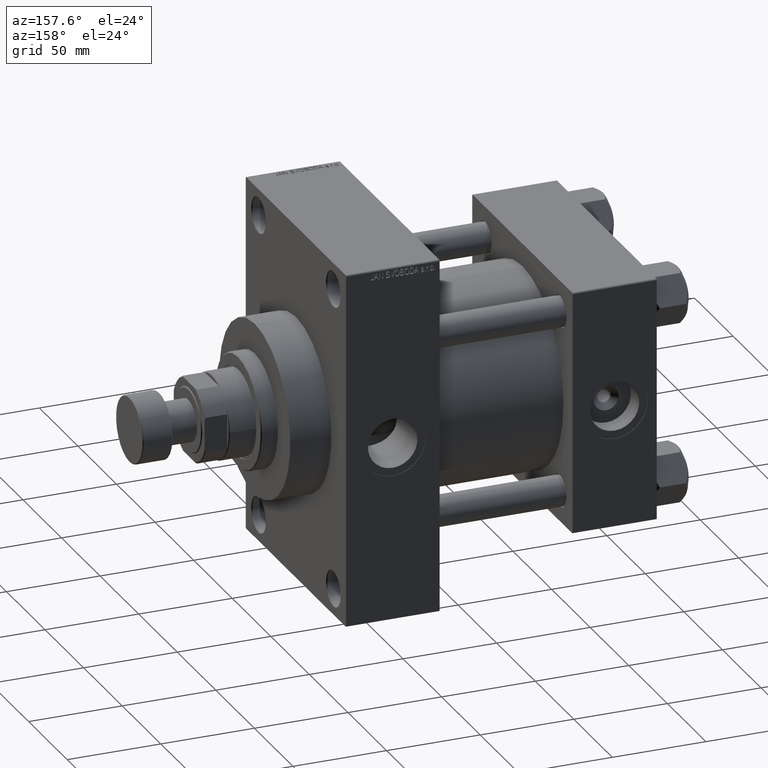
[diagram: clean part render]
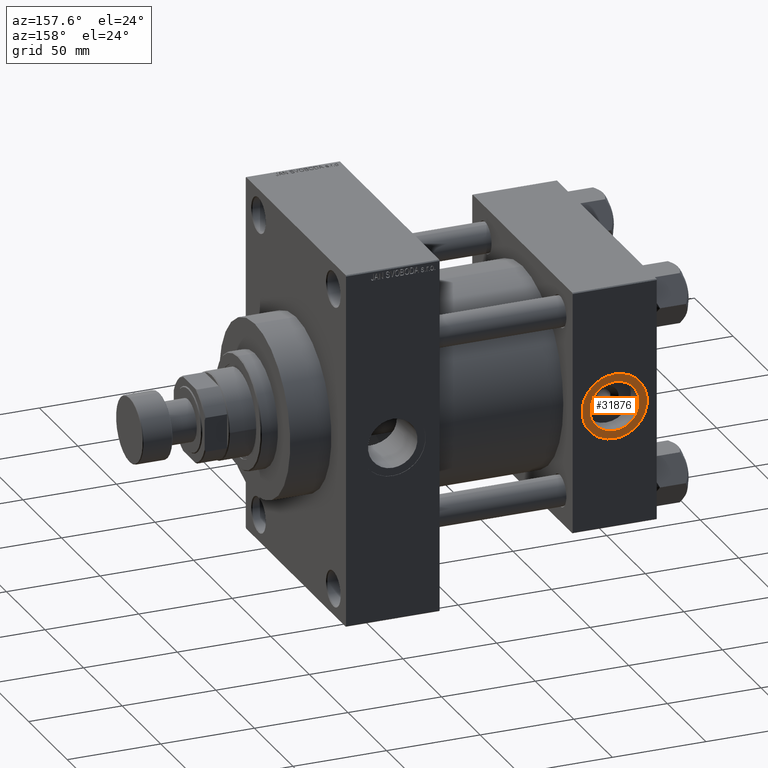
[diagram: same view with one face highlighted and labeled with its STEP entity id]
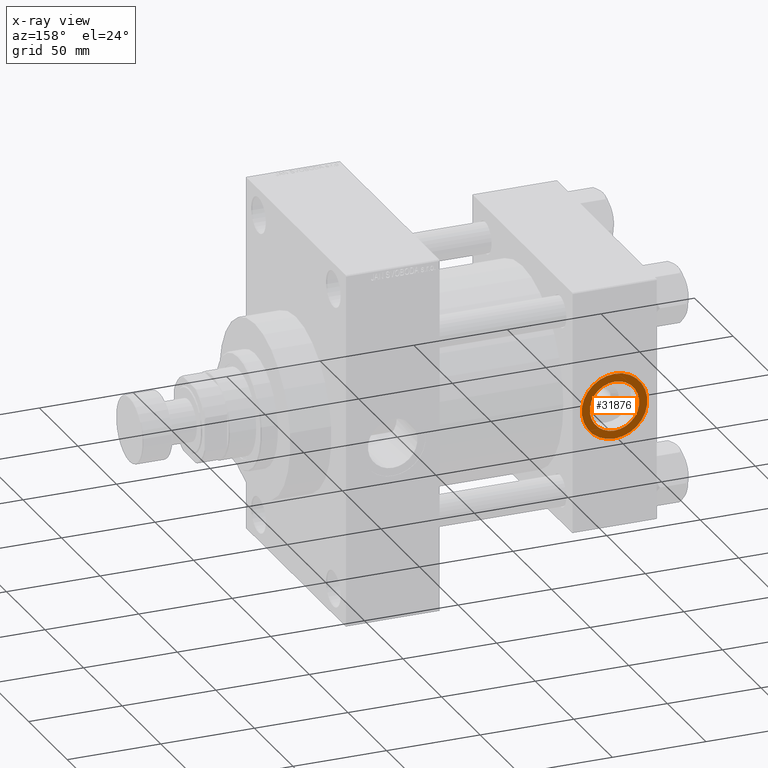
[diagram: x-ray of the same camera — body ghosted, the highlighted face saturated]
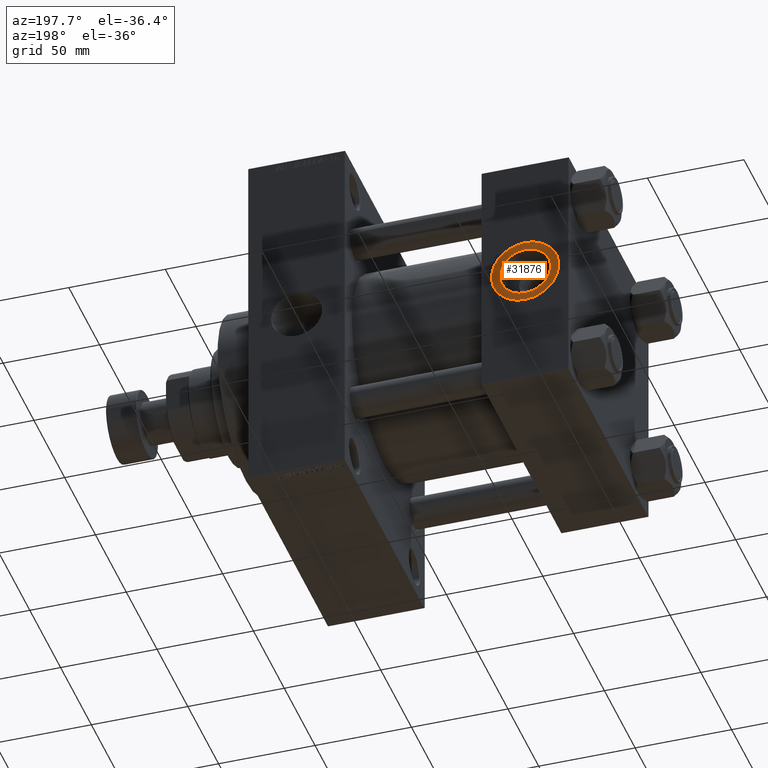
[diagram: same view with one face highlighted and labeled with its STEP entity id]
A machine part, auxiliary view. The second image highlights one B-rep face of the part: STEP entity #31876.
The next image is the same camera in x-ray: the body ghosted, the highlighted face saturated — about 0% of this face is hidden behind the body in this view.
A second angle (auxiliary view) of the same face is appended — the face is thin or edge-on in the first view.
In plain terms, the highlighted planar face has unit normal (0, 1, 0).
Its self-contained STEP definition (entity closure, byte-faithful):
#1027 = CIRCLE ( 'NONE', #35121, 13.22000000000000419 ) ;
#1163 = CARTESIAN_POINT ( 'NONE',  ( 22.50000000000000000, 64.79999999999999716, 0.000000000000000000 ) ) ;
#1800 = ORIENTED_EDGE ( 'NONE', *, *, #24486, .T. ) ;
#2202 = ORIENTED_EDGE ( 'NONE', *, *, #5266, .F. ) ;
#5266 = EDGE_CURVE ( 'NONE', #5877, #34135, #21087, .T. ) ;
#5311 = CARTESIAN_POINT ( 'NONE',  ( 22.50000000000000000, 64.79999999999999716, 0.000000000000000000 ) ) ;
#5877 = VERTEX_POINT ( 'NONE', #39176 ) ;
#8530 = AXIS2_PLACEMENT_3D ( 'NONE', #5311, #35564, #20815 ) ;
#8598 = PLANE ( 'NONE',  #8530 ) ;
#9906 = CARTESIAN_POINT ( 'NONE',  ( 22.50000000000000000, 64.79999999999999716, -13.22000000000000419 ) ) ;
#16659 = DIRECTION ( 'NONE',  ( 0.000000000000000000, 1.000000000000000000, 0.000000000000000000 ) ) ;
#18893 = EDGE_LOOP ( 'NONE', ( #1800, #37984 ) ) ;
#20085 = CIRCLE ( 'NONE', #41980, 17.50000000000000000 ) ;
#20464 = DIRECTION ( 'NONE',  ( 0.000000000000000000, 1.000000000000000000, 0.000000000000000000 ) ) ;
#20721 = DIRECTION ( 'NONE',  ( 0.000000000000000000, 0.000000000000000000, 1.000000000000000000 ) ) ;
#20815 = DIRECTION ( 'NONE',  ( 0.000000000000000000, -0.000000000000000000, 1.000000000000000000 ) ) ;
#21087 = CIRCLE ( 'NONE', #43769, 13.22000000000000419 ) ;
#22035 = CARTESIAN_POINT ( 'NONE',  ( 22.50000000000000000, 64.79999999999999716, 17.50000000000000000 ) ) ;
#24486 = EDGE_CURVE ( 'NONE', #41790, #28125, #29352, .T. ) ;
#24605 = DIRECTION ( 'NONE',  ( 0.000000000000000000, 1.000000000000000000, 0.000000000000000000 ) ) ;
#25329 = AXIS2_PLACEMENT_3D ( 'NONE', #46654, #39034, #31146 ) ;
#26286 = EDGE_CURVE ( 'NONE', #34135, #5877, #1027, .T. ) ;
#28125 = VERTEX_POINT ( 'NONE', #44854 ) ;
#29352 = CIRCLE ( 'NONE', #25329, 17.50000000000000000 ) ;
#31146 = DIRECTION ( 'NONE',  ( 0.000000000000000000, 0.000000000000000000, 1.000000000000000000 ) ) ;
#31876 = ADVANCED_FACE ( 'NONE', ( #40122, #39620 ), #8598, .T. ) ;
#32482 = DIRECTION ( 'NONE',  ( 0.000000000000000000, 0.000000000000000000, 1.000000000000000000 ) ) ;
#32979 = CARTESIAN_POINT ( 'NONE',  ( 22.50000000000000000, 64.79999999999999716, 0.000000000000000000 ) ) ;
#34135 = VERTEX_POINT ( 'NONE', #9906 ) ;
#35121 = AXIS2_PLACEMENT_3D ( 'NONE', #32979, #24605, #32482 ) ;
#35564 = DIRECTION ( 'NONE',  ( 0.000000000000000000, 1.000000000000000000, 0.000000000000000000 ) ) ;
#36475 = DIRECTION ( 'NONE',  ( 0.000000000000000000, 0.000000000000000000, 1.000000000000000000 ) ) ;
#37984 = ORIENTED_EDGE ( 'NONE', *, *, #48150, .T. ) ;
#39034 = DIRECTION ( 'NONE',  ( 0.000000000000000000, 1.000000000000000000, 0.000000000000000000 ) ) ;
#39176 = CARTESIAN_POINT ( 'NONE',  ( 22.50000000000000000, 64.79999999999999716, 13.22000000000000419 ) ) ;
#39620 = FACE_OUTER_BOUND ( 'NONE', #18893, .T. ) ;
#40122 = FACE_BOUND ( 'NONE', #45025, .T. ) ;
#41790 = VERTEX_POINT ( 'NONE', #22035 ) ;
#41980 = AXIS2_PLACEMENT_3D ( 'NONE', #43829, #20464, #36475 ) ;
#43769 = AXIS2_PLACEMENT_3D ( 'NONE', #1163, #16659, #20721 ) ;
#43829 = CARTESIAN_POINT ( 'NONE',  ( 22.50000000000000000, 64.79999999999999716, 0.000000000000000000 ) ) ;
#44854 = CARTESIAN_POINT ( 'NONE',  ( 22.50000000000000355, 64.79999999999999716, -17.50000000000000000 ) ) ;
#45025 = EDGE_LOOP ( 'NONE', ( #2202, #48348 ) ) ;
#46654 = CARTESIAN_POINT ( 'NONE',  ( 22.50000000000000000, 64.79999999999999716, 0.000000000000000000 ) ) ;
#48150 = EDGE_CURVE ( 'NONE', #28125, #41790, #20085, .T. ) ;
#48348 = ORIENTED_EDGE ( 'NONE', *, *, #26286, .F. ) ;